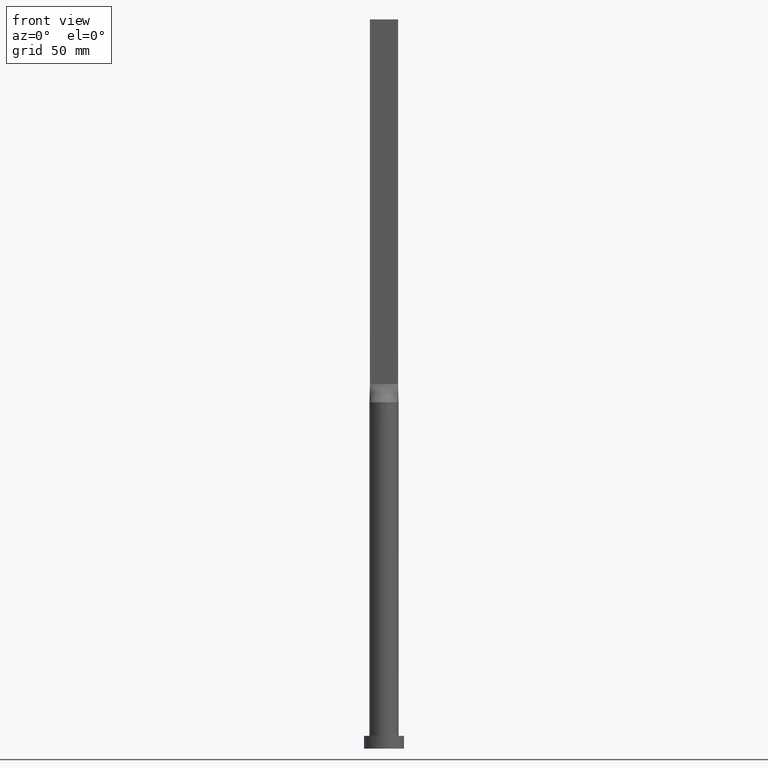
[diagram: clean part render]
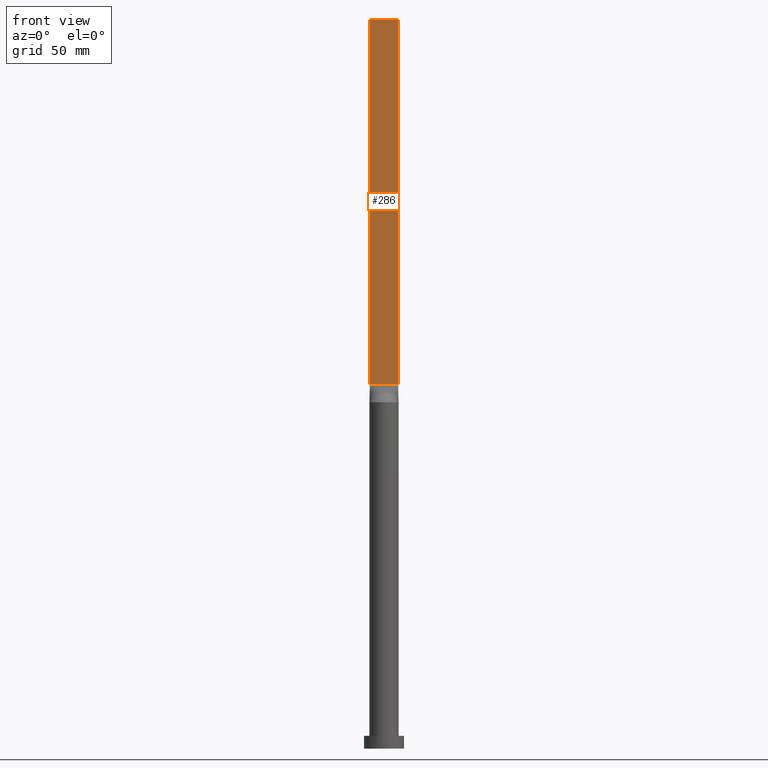
[diagram: same view with one face highlighted and labeled with its STEP entity id]
A machine part, front view. The second image highlights one B-rep face of the part: STEP entity #286.
In plain terms, the highlighted planar face has unit normal (0, 1, -0).
Its self-contained STEP definition (entity closure, byte-faithful):
#3 = ORIENTED_EDGE ( 'NONE', *, *, #42, .T. ) ;
#11 = CARTESIAN_POINT ( 'NONE',  ( 7.750000000000000000, -0.9999999999999997780, 400.0000000000000000 ) ) ;
#14 = EDGE_CURVE ( 'NONE', #32, #61, #519, .T. ) ;
#32 = VERTEX_POINT ( 'NONE', #325 ) ;
#42 = EDGE_CURVE ( 'NONE', #251, #32, #115, .T. ) ;
#57 = LINE ( 'NONE', #11, #623 ) ;
#61 = VERTEX_POINT ( 'NONE', #327 ) ;
#65 = LINE ( 'NONE', #232, #315 ) ;
#67 = ORIENTED_EDGE ( 'NONE', *, *, #14, .T. ) ;
#71 = ORIENTED_EDGE ( 'NONE', *, *, #274, .F. ) ;
#115 = LINE ( 'NONE', #285, #267 ) ;
#167 = VERTEX_POINT ( 'NONE', #197 ) ;
#173 = DIRECTION ( 'NONE',  ( 1.000000000000000000, -6.994852725712931474E-17, 0.000000000000000000 ) ) ;
#197 = CARTESIAN_POINT ( 'NONE',  ( 7.750000000000000000, -0.9999999999999997780, 400.0000000000000000 ) ) ;
#210 = CARTESIAN_POINT ( 'NONE',  ( -7.750000000000000000, -0.9999999999999986677, 400.0000000000000000 ) ) ;
#215 = FACE_OUTER_BOUND ( 'NONE', #603, .T. ) ;
#232 = CARTESIAN_POINT ( 'NONE',  ( -7.750000000000000000, -0.9999999999999986677, 400.0000000000000000 ) ) ;
#251 = VERTEX_POINT ( 'NONE', #635 ) ;
#255 = DIRECTION ( 'NONE',  ( -1.000000000000000000, 6.994852725712931474E-17, 0.000000000000000000 ) ) ;
#261 = DIRECTION ( 'NONE',  ( -0.000000000000000000, -0.000000000000000000, -1.000000000000000000 ) ) ;
#267 = VECTOR ( 'NONE', #612, 1000.000000000000000 ) ;
#274 = EDGE_CURVE ( 'NONE', #167, #61, #57, .T. ) ;
#275 = CARTESIAN_POINT ( 'NONE',  ( -7.750000000000000000, -0.9999999999999986677, 200.0000000000000000 ) ) ;
#285 = CARTESIAN_POINT ( 'NONE',  ( -7.750000000000000000, -0.9999999999999986677, 400.0000000000000000 ) ) ;
#286 = ADVANCED_FACE ( 'NONE', ( #215 ), #639, .F. ) ;
#315 = VECTOR ( 'NONE', #173, 1000.000000000000000 ) ;
#325 = CARTESIAN_POINT ( 'NONE',  ( -7.750000000000000000, -0.9999999999999986677, 200.0000000000000000 ) ) ;
#327 = CARTESIAN_POINT ( 'NONE',  ( 7.750000000000000000, -0.9999999999999997780, 200.0000000000000000 ) ) ;
#515 = DIRECTION ( 'NONE',  ( 1.000000000000000000, -6.994852725712931474E-17, 0.000000000000000000 ) ) ;
#519 = LINE ( 'NONE', #275, #548 ) ;
#548 = VECTOR ( 'NONE', #515, 1000.000000000000000 ) ;
#562 = AXIS2_PLACEMENT_3D ( 'NONE', #210, #584, #255 ) ;
#579 = EDGE_CURVE ( 'NONE', #251, #167, #65, .T. ) ;
#584 = DIRECTION ( 'NONE',  ( 6.994852725712931474E-17, 1.000000000000000000, -0.000000000000000000 ) ) ;
#603 = EDGE_LOOP ( 'NONE', ( #67, #71, #630, #3 ) ) ;
#612 = DIRECTION ( 'NONE',  ( -0.000000000000000000, -0.000000000000000000, -1.000000000000000000 ) ) ;
#623 = VECTOR ( 'NONE', #261, 1000.000000000000000 ) ;
#630 = ORIENTED_EDGE ( 'NONE', *, *, #579, .F. ) ;
#635 = CARTESIAN_POINT ( 'NONE',  ( -7.750000000000000000, -0.9999999999999986677, 400.0000000000000000 ) ) ;
#639 = PLANE ( 'NONE',  #562 ) ;